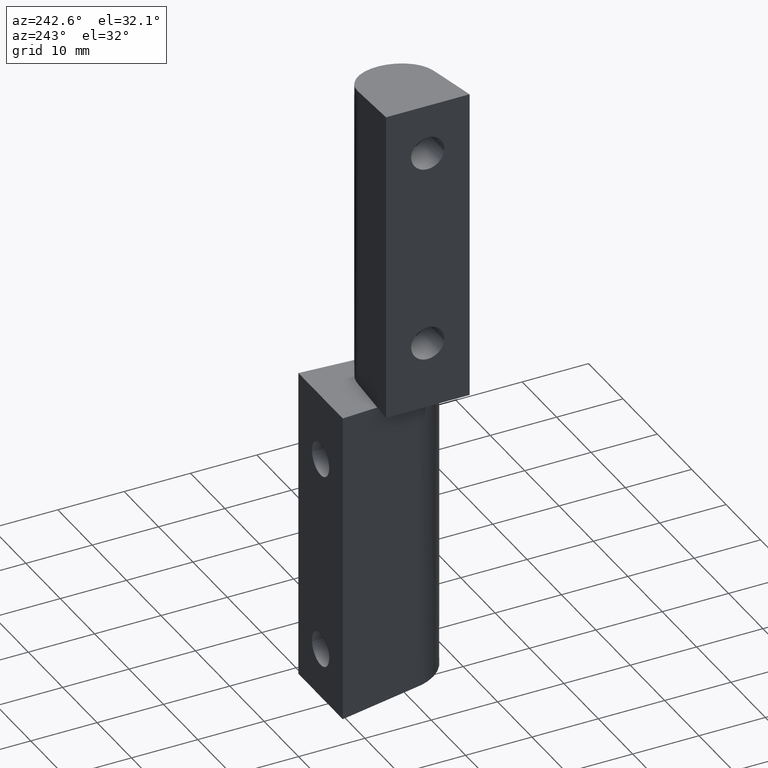
[diagram: clean part render]
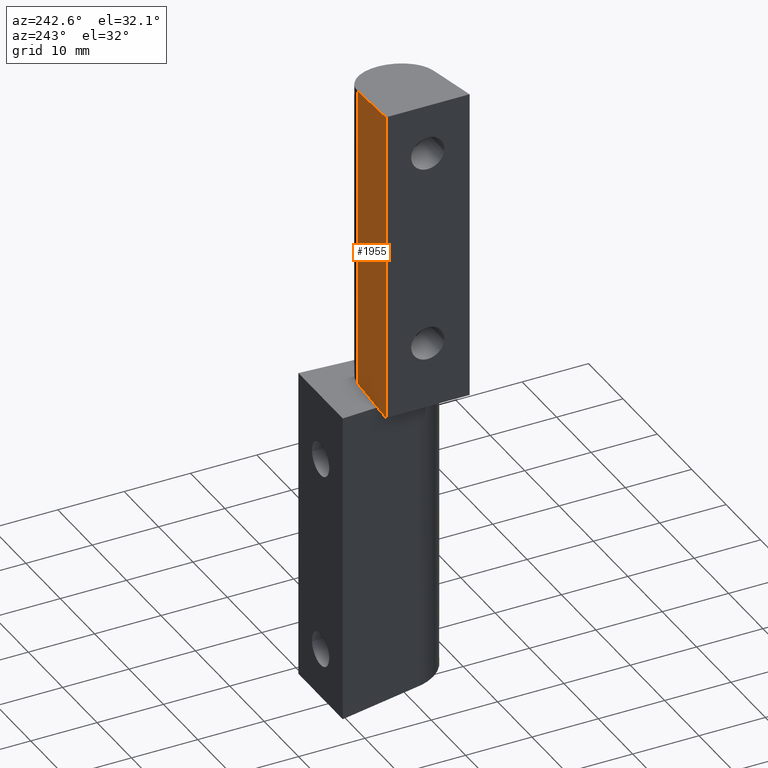
[diagram: same view with one face highlighted and labeled with its STEP entity id]
A machine part, auxiliary view. The second image highlights one B-rep face of the part: STEP entity #1955.
In plain terms, the highlighted face is a freeform B-spline surface patch.
Its self-contained STEP definition (entity closure, byte-faithful):
#1844=CARTESIAN_POINT('',(0.371515839192952,5.687880015226800,93.724968285499799));
#1845=VERTEX_POINT('',#1844);
#1861=CARTESIAN_POINT('',(-9.000000427477300,6.300000299233999,95.000004512257405));
#1862=VERTEX_POINT('',#1861);
#1863=CARTESIAN_POINT('',(-9.000000427477300,6.300000299233999,95.000004512257405));
#1864=CARTESIAN_POINT('',(0.371515839192952,5.687880015226800,93.724968285499799));
#1865=QUASI_UNIFORM_CURVE('',1,(#1863,#1864),.UNSPECIFIED.,.F.,.U.);
#1866=EDGE_CURVE('',#1862,#1845,#1865,.T.);
#1901=CARTESIAN_POINT('',(0.371515839192952,5.687880015226800,47.500002256128802));
#1902=VERTEX_POINT('',#1901);
#1903=CARTESIAN_POINT('',(0.371515839192952,5.687880015226800,47.500002256128802));
#1904=CARTESIAN_POINT('',(0.371515839192952,5.687880015226800,93.724968285499799));
#1905=QUASI_UNIFORM_CURVE('',1,(#1903,#1904),.UNSPECIFIED.,.F.,.U.);
#1906=EDGE_CURVE('',#1902,#1845,#1905,.T.);
#1934=CARTESIAN_POINT('',(-9.468107206968218,6.330575677502932,45.127378403484130));
#1935=CARTESIAN_POINT('',(0.839623288986944,5.657304593175535,45.127378403484130));
#1936=CARTESIAN_POINT('',(-9.468107206968218,6.330575677502932,97.372634310465671));
#1937=CARTESIAN_POINT('',(0.839623288986944,5.657304593175535,97.372634310465671));
#1938=B_SPLINE_SURFACE_WITH_KNOTS('',1,1,((#1934,#1936),(#1935,#1937)),.UNSPECIFIED.,.F.,.F.,.U.,(2,2),(2,2),(0.0,10.329695151853970),(0.0,52.245255906981541),.UNSPECIFIED.);
#1939=CARTESIAN_POINT('',(-9.000000427477300,6.300000299233999,47.500002256128802));
#1940=VERTEX_POINT('',#1939);
#1941=CARTESIAN_POINT('',(-9.000000427477300,6.300000299233999,47.500002256128802));
#1942=CARTESIAN_POINT('',(-9.000000427477300,6.300000299233999,95.000004512257405));
#1943=QUASI_UNIFORM_CURVE('',1,(#1941,#1942),.UNSPECIFIED.,.F.,.U.);
#1944=EDGE_CURVE('',#1940,#1862,#1943,.T.);
#1945=ORIENTED_EDGE('',*,*,#1944,.T.);
#1946=ORIENTED_EDGE('',*,*,#1866,.T.);
#1947=ORIENTED_EDGE('',*,*,#1906,.F.);
#1948=CARTESIAN_POINT('',(-9.000000427477300,6.300000299233999,47.500002256128802));
#1949=CARTESIAN_POINT('',(0.371515839192952,5.687880015226800,47.500002256128802));
#1950=QUASI_UNIFORM_CURVE('',1,(#1948,#1949),.UNSPECIFIED.,.F.,.U.);
#1951=EDGE_CURVE('',#1940,#1902,#1950,.T.);
#1952=ORIENTED_EDGE('',*,*,#1951,.F.);
#1953=EDGE_LOOP('',(#1945,#1946,#1947,#1952));
#1954=FACE_OUTER_BOUND('',#1953,.T.);
#1955=ADVANCED_FACE('',(#1954),#1938,.F.);